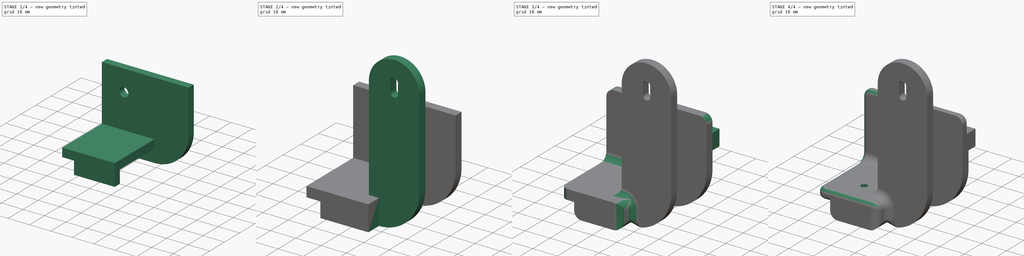
[diagram: build sequence overview — one tinted view per stage of 4, left to right]
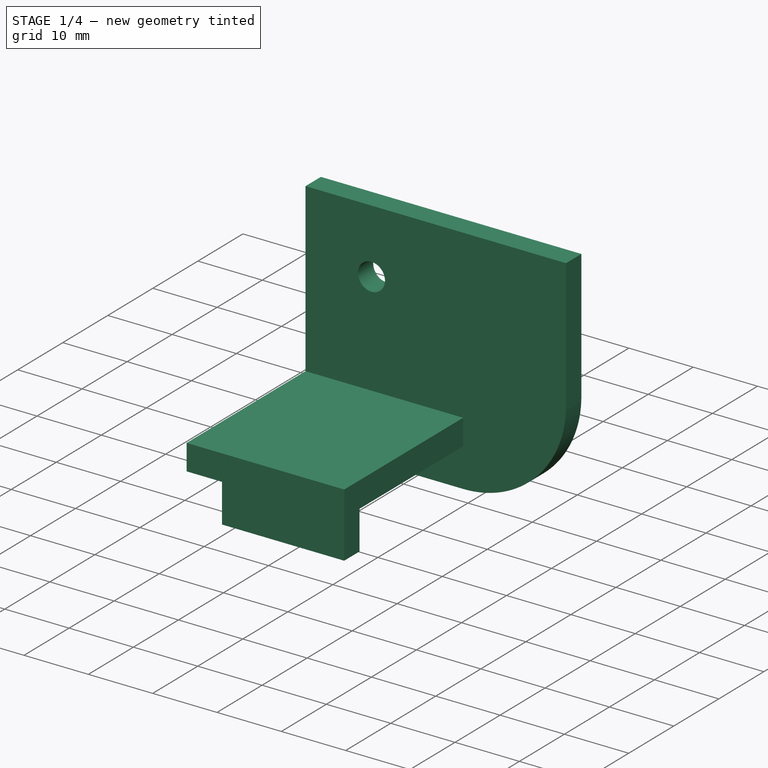
[diagram: stage 1 of 4 — iso view after this stage's code; geometry added in this stage tinted green]
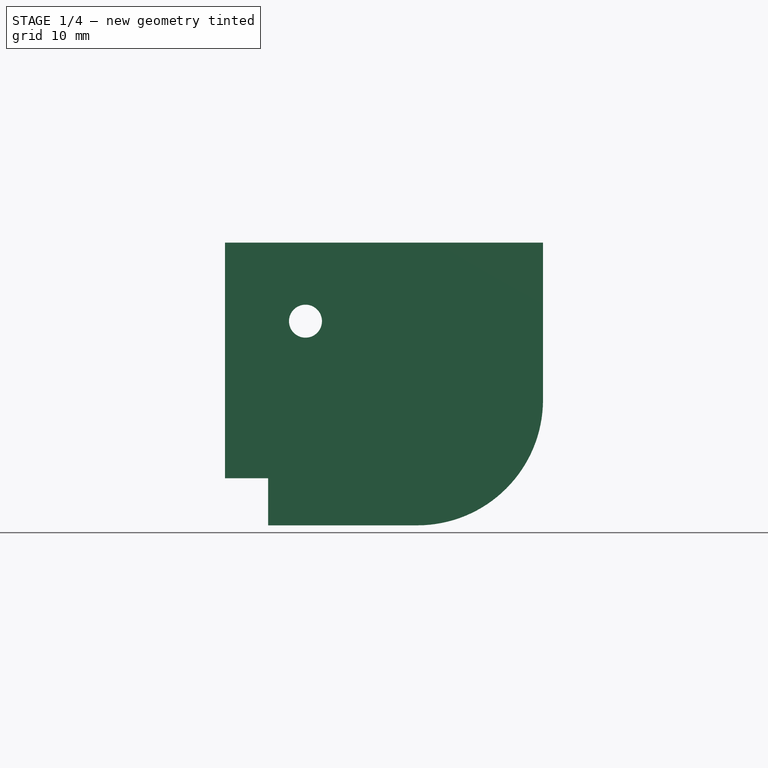
[diagram: stage 1 of 4 — front view after this stage's code; geometry added in this stage tinted green]
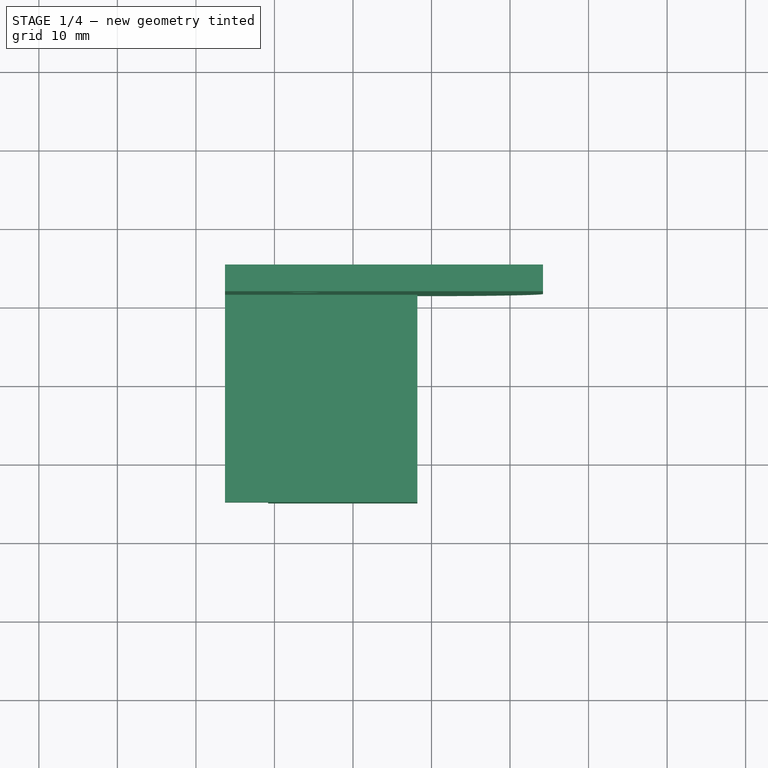
[diagram: stage 1 of 4 — top view after this stage's code; geometry added in this stage tinted green]
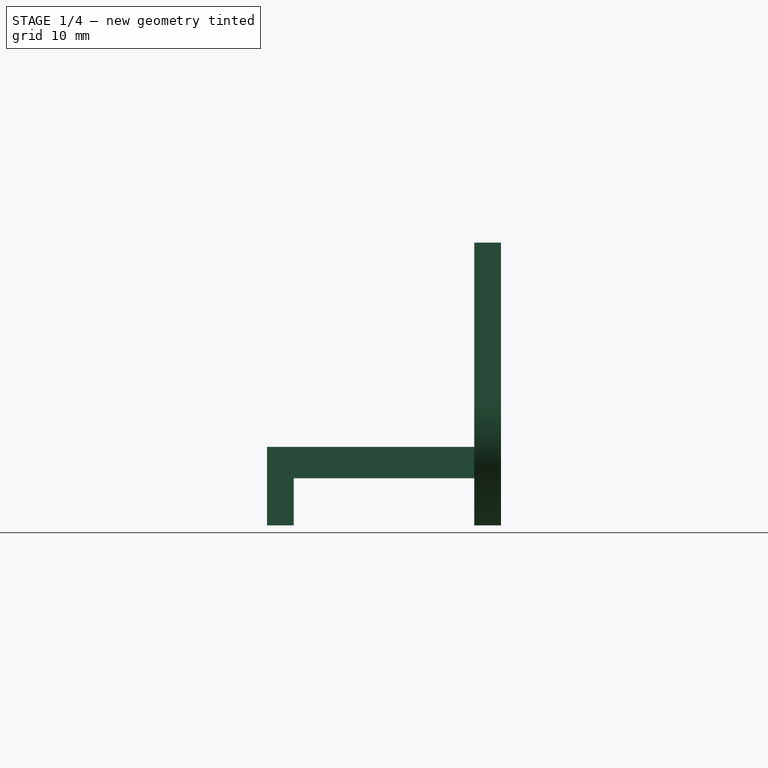
[diagram: stage 1 of 4 — right view after this stage's code; geometry added in this stage tinted green]
FCSTD DOCUMENT  (FreeCAD 1.0R39109 (Git))
Label: ChainDockTop
License: All rights reserved
LicenseURL: http://en.wikipedia.org/wiki/All_rights_reserved
objects: Sketcher::SketchObject×10, PartDesign::Pad×7, PartDesign::Fillet×3, App::VarSet×1, PartDesign::Pocket×1, PartDesign::Body×1
note: 54 computed .brp shape members not serialized (recipe doc carries the construction recipe); baked Part::Feature solids carry a one-line shape summary decoded from their .brp

FEATURE [Sketcher::SketchObject] Sketch  label="Template_XY"
  ArcFitTolerance = 1e-06
  AttachmentSupport = -> [XY_Plane]
  FullyConstrained = true
  MakeInternals = false
  MapMode = 5
  expr: .Constraints.Width = <<Dimensions>>.ConnectorWidth
  expr: Constraints[26] = <<Dimensions>>.ConnectorInnerMargin
  expr: Constraints[9] = <<Dimensions>>.ConnectorLength
  sketch-geometry (11):
    g0: Circle CenterX=0 CenterY=0 CenterZ=0 NormalX=0 NormalY=0 NormalZ=1 AngleXU=0 Radius=1.275
    g1: LineSegment StartX=4.2 StartY=11.5 StartZ=0 EndX=-16.3 EndY=11.5 EndZ=0
    g2: LineSegment StartX=-16.3 StartY=11.5 StartZ=0 EndX=-16.3 EndY=-11.5 EndZ=0
    g3: LineSegment StartX=-16.3 StartY=-11.5 StartZ=0 EndX=4.2 EndY=-11.5 EndZ=0
    g4: LineSegment StartX=4.2 StartY=-11.5 StartZ=0 EndX=4.2 EndY=11.5 EndZ=0
    g5: Circle CenterX=-4 CenterY=5 CenterZ=0 NormalX=0 NormalY=0 NormalZ=1 AngleXU=0 Radius=1.275
    g6: Circle CenterX=-4 CenterY=-5 CenterZ=0 NormalX=0 NormalY=0 NormalZ=1 AngleXU=0 Radius=1.275
    g7: LineSegment StartX=-4 StartY=5 StartZ=0 EndX=-4 EndY=-5 EndZ=0
    g8: LineSegment StartX=-16.3 StartY=0 StartZ=0 EndX=4.2 EndY=0 EndZ=0
    g9: LineSegment StartX=0 StartY=11.5 StartZ=0 EndX=0 EndY=-11.5 EndZ=0
    g10: LineSegment StartX=-10.8 StartY=11.5 StartZ=0 EndX=-10.8 EndY=-11.5 EndZ=0
  constraints (31):
    c: Radius(g0) = 1.275
    c: Coincident(g0,g-1)
    c: Coincident(g1,g2)
    c: Coincident(g2,g3)
    c: Coincident(g3,g4)
    c: Coincident(g4,g1)
    c: Horizontal(g1)
    c: Horizontal(g3)
    c: Vertical(g4)
    c: DistanceX(g1,g1) = 20.5
    c: Coincident(g7,g5)
    c: Coincident(g7,g6)
    c: DistanceY(g7,g7) = 10
    c: Equal(g0,g5)
    c: Equal(g5,g6)
    c: DistanceY(g4,g4) = 23  'Width'
    c: Symmetric(g4,g4,g8)
    c: PointOnObject(g0,g8)
    c: Symmetric(g2,g1,g8)
    c: Symmetric(g5,g6,g8)
    c: PointOnObject(g8,g2)
    c: PointOnObject(g9,g1)
    c: PointOnObject(g9,g3)
    c: Vertical(g9)
    c: PointOnObject(g0,g9)
    c: DistanceX(g5,g0) = 4
    c: DistanceX(g9,g1) = 4.2
    c: PointOnObject(g10,g1)
    c: PointOnObject(g10,g3)
    c: Vertical(g10)
    c: DistanceX(g1,g10) = 5.5
FEATURE [Sketcher::SketchObject] Sketch001  label="Template_XZ"
  ArcFitTolerance = 1e-06
  AttachmentSupport = -> [XZ_Plane]
  ExternalGeometry = -> [Sketch]
  FullyConstrained = true
  MakeInternals = false
  MapMode = 5
  Placement = pos=(0,0,0) rot=(1,0,0;1.5708rad)
  sketch-geometry (28):
    g0: LineSegment StartX=-16.3 StartY=0 StartZ=0 EndX=-16.3 EndY=4 EndZ=0
    g1: LineSegment StartX=-16.3 StartY=0 StartZ=0 EndX=-16.3 EndY=-6 EndZ=0
    g2: LineSegment [constr] StartX=4.2 StartY=4 StartZ=0 EndX=8.2 EndY=4 EndZ=0
    g3: LineSegment StartX=-16.3 StartY=4 StartZ=0 EndX=4.2 EndY=4 EndZ=0
    g4: LineSegment [constr] StartX=4.2 StartY=0 StartZ=0 EndX=4.2 EndY=4 EndZ=0
    g5: LineSegment StartX=-16.3 StartY=0 StartZ=0 EndX=8.2 EndY=0 EndZ=0
    g6: ArcOfCircle CenterX=8.2 CenterY=10 CenterZ=0 NormalX=0 NormalY=0 NormalZ=1 AngleXU=0 Radius=16 StartAngle=4.71239 EndAngle=6.28319
    g7: LineSegment [constr] StartX=8.2 StartY=10 StartZ=0 EndX=24.2 EndY=10 EndZ=0
    g8: LineSegment StartX=-16.3 StartY=4 StartZ=0 EndX=-16.3 EndY=30 EndZ=0
    g9: LineSegment StartX=-16.3 StartY=30 StartZ=0 EndX=4.2 EndY=30 EndZ=0
    g10: LineSegment StartX=24.2 StartY=10 StartZ=0 EndX=24.2 EndY=45 EndZ=0
    g11: LineSegment StartX=4.2 StartY=30 StartZ=0 EndX=4.2 EndY=45 EndZ=0
    g12: LineSegment [constr] StartX=4.2 StartY=45 StartZ=0 EndX=24.2 EndY=45 EndZ=0
    g13: LineSegment StartX=8.2 StartY=0 StartZ=0 EndX=8.2 EndY=30 EndZ=0
    g14: LineSegment StartX=8.2 StartY=30 StartZ=0 EndX=4.2 EndY=30 EndZ=0
    g15: ArcOfCircle CenterX=14.2 CenterY=45 CenterZ=0 NormalX=0 NormalY=0 NormalZ=1 AngleXU=0 Radius=10 StartAngle=-9e-16 EndAngle=3.14159
    g16: ArcOfCircle CenterX=14.2 CenterY=47 CenterZ=0 NormalX=0 NormalY=0 NormalZ=1 AngleXU=0 Radius=1.5 StartAngle=-1.8e-15 EndAngle=3.14159
    g17: ArcOfCircle CenterX=14.2 CenterY=43 CenterZ=0 NormalX=0 NormalY=0 NormalZ=1 AngleXU=0 Radius=1.5 StartAngle=3.14159 EndAngle=6.28319
    g18: LineSegment StartX=15.7 StartY=47 StartZ=0 EndX=15.7 EndY=43 EndZ=0
    g19: LineSegment StartX=12.7 StartY=47 StartZ=0 EndX=12.7 EndY=43 EndZ=0
    g20: LineSegment [constr] StartX=14.2 StartY=47 StartZ=0 EndX=14.2 EndY=43 EndZ=0
    g21: LineSegment StartX=-16.3 StartY=20 StartZ=0 EndX=4.2 EndY=20 EndZ=0
    g22: Circle CenterX=-6.05 CenterY=20 CenterZ=0 NormalX=0 NormalY=0 NormalZ=1 AngleXU=0 Radius=2.1
    g23: LineSegment StartX=4.2 StartY=30 StartZ=0 EndX=4.2 EndY=4 EndZ=0
    g24: LineSegment StartX=-16.3 StartY=-6 StartZ=0 EndX=-10.8 EndY=-6 EndZ=0
    g25: LineSegment StartX=-10.8 StartY=-6 StartZ=0 EndX=8.2 EndY=-6 EndZ=0
    g26: LineSegment StartX=-10.8 StartY=-6 StartZ=0 EndX=-10.8 EndY=0 EndZ=0
    g27: LineSegment StartX=4.2 StartY=20 StartZ=0 EndX=24.2 EndY=20 EndZ=0
  constraints (75):
    c: Coincident(g0,g-4)
    c: Vertical(g0)
    c: Coincident(g1,g0)
    c: Vertical(g1)
    c: DistanceY(g0,g0) = 4
    c: Horizontal(g2)
    c: Coincident(g3,g0)
    c: Horizontal(g3)
    c: Coincident(g24,g1)
    c: Vertical(g4)
    c: Coincident(g5,g0)
    c: Coincident(g6,g25)
    c: Coincident(g7,g6)
    c: Horizontal(g7)
    c: Coincident(g8,g0)
    c: Vertical(g8)
    c: DistanceY(g8,g8) = 26
    c: Coincident(g9,g8)
    c: Horizontal(g9)
    c: Coincident(g10,g6)
    c: Vertical(g10)
    c: Coincident(g11,g9)
    c: Vertical(g11)
    c: Coincident(g12,g11)
    c: Coincident(g12,g10)
    c: Horizontal(g12)
    c: DistanceY(g8,g11) = 15
    c: DistanceX(g12,g12) = 20
    c: Vertical(g13)
    c: Coincident(g14,g13)
    c: Coincident(g14,g9)
    c: Coincident(g11,g15)
    c: Coincident(g10,g15)
    c: PointOnObject(g15,g12)
    c: Horizontal(g14)
    c: Tangent(g16,g18) = 1.5708
    c: Tangent(g16,g19) = -1.5708
    c: Tangent(g17,g18) = 1.5708
    c: Tangent(g17,g19) = -1.5708
    c: Equal(g16,g17)
    c: Vertical(g19)
    c: Coincident(g20,g16)
    c: Coincident(g20,g17)
    c: Symmetric(g16,g17,g15)
    c: Radius(g16) = 1.5
    c: DistanceY(g19,g19) = 4
    c: Horizontal(g21)
    c: DistanceY(g21,g8) = 10
    c: Symmetric(g21,g21,g22)
    c: Radius(g22) = 2.1
    c: DistanceY(g1,g1) = 6
    c: Coincident(g23,g9)
    c: Vertical(g23)
    c: PointOnObject(g21,g23)
    c: Coincident(g24,g25)
    c: Horizontal(g24)
    c: Horizontal(g25)
    c: Coincident(g26,g24)
    c: Vertical(g26)
    c: Coincident(g27,g21)
    c: PointOnObject(g27,g10)
    c: Horizontal(g27)
    c: PointOnObject(g21,g8)
    c: PointOnObject(g2,g13)
    c: Equal(g0,g14)
    c: Coincident(g13,g5)
    c: PointOnObject(g4,g5)
    c: Coincident(g2,g3)
    c: Coincident(g2,g4)
    c: Coincident(g2,g23)
    c: Coincident(g7,g6)
    c: PointOnObject(g6,g13)
    c: PointOnObject(g6,g13)
    c: Coincident(g4,g-3)
    c: Coincident(g26,g-5)
FEATURE [Sketcher::SketchObject] Sketch002
  ArcFitTolerance = 1e-06
  AttachmentOffset = pos=(0,0,-11.5) rot=(0,0,1;0rad)
  AttachmentSupport = -> [XZ_Plane]
  ExternalGeometry = -> [Sketch001]
  FullyConstrained = true
  MakeInternals = false
  MapMode = 5
  Placement = pos=(0,11.5,-2.6e-15) rot=(1,0,0;1.5708rad)
  expr: .AttachmentOffset.Base.z = -<<Template_XY>>.Constraints.Width / 2
  sketch-geometry (8):
    g0: LineSegment StartX=24.2 StartY=10 StartZ=0 EndX=24.2 EndY=30 EndZ=0
    g1: LineSegment StartX=24.2 StartY=30 StartZ=0 EndX=-16.3 EndY=30 EndZ=0
    g2: LineSegment StartX=-10.8 StartY=-6 StartZ=0 EndX=8.2 EndY=-6 EndZ=0
    g3: ArcOfCircle CenterX=8.2 CenterY=10 CenterZ=0 NormalX=0 NormalY=0 NormalZ=1 AngleXU=0 Radius=16 StartAngle=4.71239 EndAngle=6.28319
    g4: Circle CenterX=-6.05 CenterY=20 CenterZ=0 NormalX=0 NormalY=0 NormalZ=1 AngleXU=0 Radius=2.1
    g5: LineSegment StartX=-16.3 StartY=30 StartZ=0 EndX=-16.3 EndY=0 EndZ=0
    g6: LineSegment StartX=-16.3 StartY=0 StartZ=0 EndX=-10.8 EndY=0 EndZ=0
    g7: LineSegment StartX=-10.8 StartY=0 StartZ=0 EndX=-10.8 EndY=-6 EndZ=0
  constraints (18):
    c: Coincident(g-5,g0)
    c: Vertical(g0)
    c: Coincident(g1,g0)
    c: PointOnObject(g-3,g1)
    c: Coincident(g2,g-4)
    c: Coincident(g3,g0)
    c: Coincident(g3,g2)
    c: Equal(g3,g-4)
    c: Coincident(g4,g-7)
    c: Equal(g4,g-7)
    c: Coincident(g1,g-3)
    c: Coincident(g5,g1)
    c: Coincident(g5,g-8)
    c: Coincident(g6,g5)
    c: Coincident(g6,g-6)
    c: Coincident(g7,g6)
    c: Coincident(g7,g2)
    c: Coincident(g2,g-6)
FEATURE [PartDesign::Pad] Pad
  Direction = (0,-1,2e-16)
  Length = 3.4
  Length2 = 10
  Placement = pos=(0,0,0) rot=(1,0,0;1.5708rad)
  Profile = -> Sketch002
  ReferenceAxis = -> Sketch002 [N_Axis]
  Reversed = true
  Suppressed = false
  Type = 0
FEATURE [Sketcher::SketchObject] Sketch003
  ArcFitTolerance = 1e-06
  AttachmentOffset = pos=(0,0,-11.5) rot=(0,0,1;0rad)
  AttachmentSupport = -> [XZ_Plane]
  ExternalGeometry = -> [Sketch001]
  FullyConstrained = true
  MakeInternals = false
  MapMode = 5
  Placement = pos=(0,11.5,-2.6e-15) rot=(1,0,0;1.5708rad)
  expr: .AttachmentOffset.Base.z = <<Sketch002>>.AttachmentOffset.Base.z
  sketch-geometry (4):
    g0: LineSegment StartX=8.2 StartY=4 StartZ=0 EndX=-16.3 EndY=4 EndZ=0
    g1: LineSegment StartX=-16.3 StartY=4 StartZ=0 EndX=-16.3 EndY=0 EndZ=0
    g2: LineSegment StartX=-16.3 StartY=0 StartZ=0 EndX=8.2 EndY=0 EndZ=0
    g3: LineSegment StartX=8.2 StartY=0 StartZ=0 EndX=8.2 EndY=4 EndZ=0
  constraints (9):
    c: Coincident(g0,g-3)
    c: Coincident(g0,g1)
    c: Coincident(g1,g-3)
    c: Coincident(g1,g2)
    c: Coincident(g2,g-5)
    c: PointOnObject(g0,g-5)
    c: PointOnObject(g-4,g0)
    c: Coincident(g3,g2)
    c: Coincident(g0,g3)
FEATURE [PartDesign::Pad] Pad001
  BaseFeature = -> Pad
  Direction = (0,-1,2e-16)
  Length = 23
  Length2 = 10
  Placement = pos=(0,0,0) rot=(1,0,0;1.5708rad)
  Profile = -> Sketch003
  ReferenceAxis = -> Sketch003 [N_Axis]
  Suppressed = false
  Type = 0
  expr: Length = <<Template_XY>>.Constraints.Width
FEATURE [Sketcher::SketchObject] Sketch004
  ArcFitTolerance = 1e-06
  AttachmentOffset = pos=(0,0,11.5) rot=(0,0,1;0rad)
  AttachmentSupport = -> [XZ_Plane]
  ExternalGeometry = -> [Sketch001]
  FullyConstrained = true
  MakeInternals = false
  MapMode = 5
  Placement = pos=(0,-11.5,2.6e-15) rot=(1,0,0;1.5708rad)
  expr: .AttachmentOffset.Base.z = <<Template_XY>>.Constraints.Width / 2
  sketch-geometry (6):
    g0: LineSegment StartX=8.2 StartY=-6 StartZ=0 EndX=-10.8 EndY=-6 EndZ=0
    g1: LineSegment StartX=-10.8 StartY=-6 StartZ=0 EndX=-10.8 EndY=0 EndZ=0
    g2: LineSegment StartX=-10.8 StartY=0 StartZ=0 EndX=-16.3 EndY=0 EndZ=0
    g3: LineSegment StartX=-16.3 StartY=0 StartZ=0 EndX=-16.3 EndY=4 EndZ=0
    g4: LineSegment StartX=-16.3 StartY=4 StartZ=0 EndX=8.2 EndY=4 EndZ=0
    g5: LineSegment StartX=8.2 StartY=-6 StartZ=0 EndX=8.2 EndY=4 EndZ=0
  constraints (14):
    c: Coincident(g0,g-5)
    c: Coincident(g0,g1)
    c: Coincident(g1,g-5)
    c: Coincident(g1,g2)
    c: Coincident(g2,g-4)
    c: Coincident(g2,g3)
    c: Coincident(g3,g-3)
    c: Coincident(g3,g4)
    c: PointOnObject(g0,g-6)
    c: PointOnObject(g-7,g0)
    c: PointOnObject(g4,g-6)
    c: PointOnObject(g-3,g4)
    c: Coincident(g5,g0)
    c: Coincident(g5,g4)
FEATURE [PartDesign::Pad] Pad002
  BaseFeature = -> Pad001
  Direction = (0,-1,2e-16)
  Length = 3.4
  Length2 = 10
  Placement = pos=(0,0,0) rot=(1,0,0;1.5708rad)
  Profile = -> Sketch004
  ReferenceAxis = -> Sketch004 [N_Axis]
  Refine = true
  Suppressed = false
  Type = 0
  expr: Length = <<Pad>>.Length
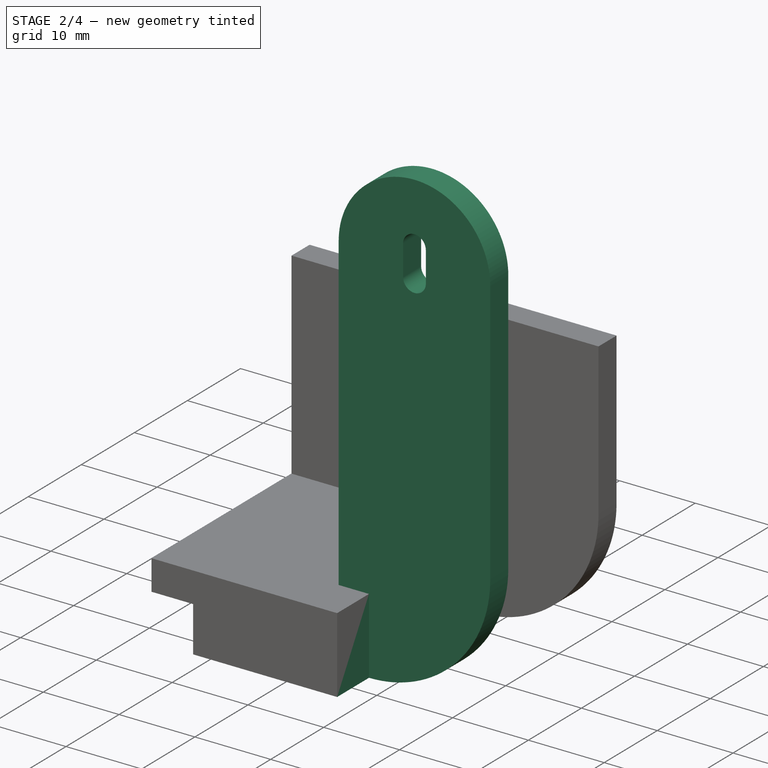
[diagram: stage 2 of 4 — iso view after this stage's code; geometry added in this stage tinted green]
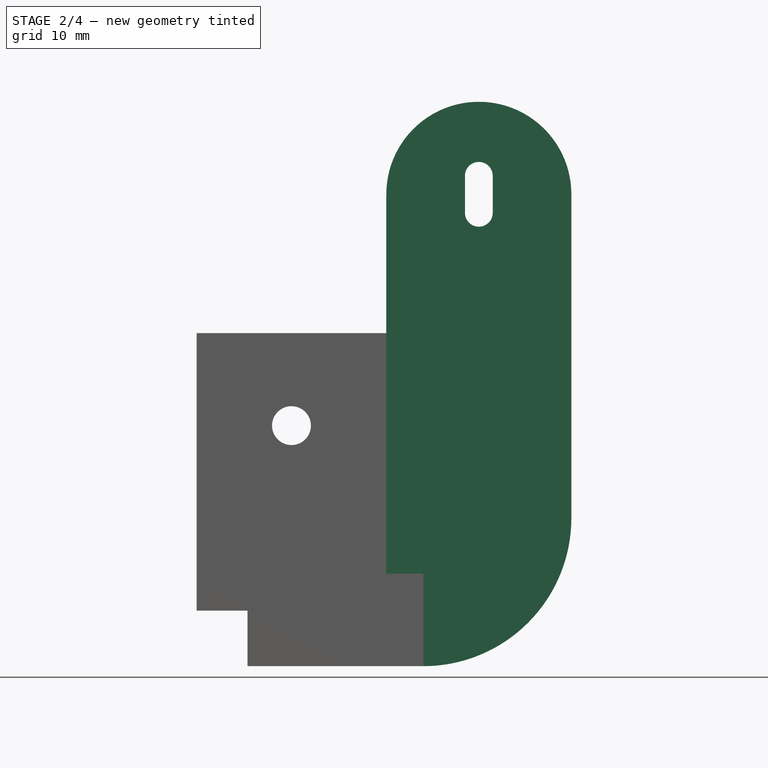
[diagram: stage 2 of 4 — front view after this stage's code; geometry added in this stage tinted green]
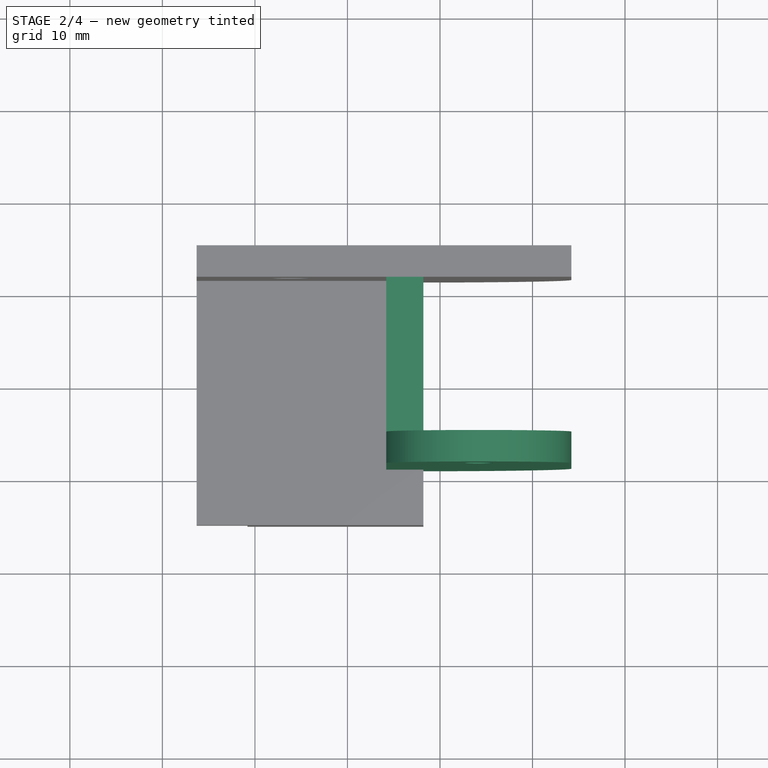
[diagram: stage 2 of 4 — top view after this stage's code; geometry added in this stage tinted green]
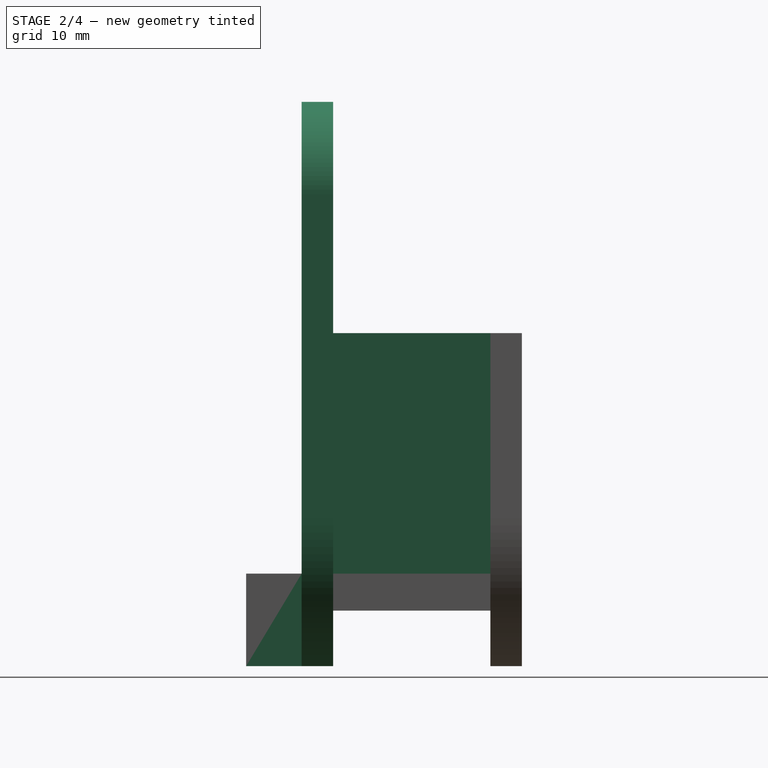
[diagram: stage 2 of 4 — right view after this stage's code; geometry added in this stage tinted green]
FEATURE [Sketcher::SketchObject] Sketch005
  ArcFitTolerance = 1e-06
  AttachmentOffset = pos=(0,0,-14.9) rot=(0,0,1;0rad)
  AttachmentSupport = -> [XZ_Plane]
  ExternalGeometry = -> [Sketch001]
  FullyConstrained = true
  MakeInternals = false
  MapMode = 5
  Placement = pos=(0,14.9,-3.3e-15) rot=(1,0,0;1.5708rad)
  expr: .AttachmentOffset.Base.z = <<Sketch002>>.AttachmentOffset.Base.z - <<Pad>>.Length
  sketch-geometry (4):
    g0: LineSegment StartX=24.2 StartY=23.2 StartZ=0 EndX=1.95 EndY=23.2 EndZ=0
    g1: LineSegment StartX=1.95 StartY=23.2 StartZ=0 EndX=1.95 EndY=16.8 EndZ=0
    g2: LineSegment StartX=1.95 StartY=16.8 StartZ=0 EndX=24.2 EndY=16.8 EndZ=0
    g3: LineSegment StartX=24.2 StartY=16.8 StartZ=0 EndX=24.2 EndY=23.2 EndZ=0
  constraints (11):
    c: Coincident(g0,g1)
    c: Coincident(g1,g2)
    c: Coincident(g2,g3)
    c: Coincident(g3,g0)
    c: Horizontal(g0)
    c: Horizontal(g2)
    c: Vertical(g1)
    c: PointOnObject(g0,g-6)
    c: Symmetric(g2,g0,g-4)
    c: DistanceX(g-7,g0) = 8
    c: DistanceY(g3,g3) = 6.4
FEATURE [Sketcher::SketchObject] Sketch006
  ArcFitTolerance = 1e-06
  AttachmentSupport = -> [XY_Plane]
  ExternalGeometry = -> [Sketch]
  FullyConstrained = true
  MakeInternals = false
  MapMode = 5
  sketch-geometry (3):
    g0: Circle CenterX=-4 CenterY=5 CenterZ=0 NormalX=0 NormalY=0 NormalZ=1 AngleXU=0 Radius=1.275
    g1: Circle CenterX=0 CenterY=0 CenterZ=0 NormalX=0 NormalY=0 NormalZ=1 AngleXU=0 Radius=1.275
    g2: Circle CenterX=-4 CenterY=-5 CenterZ=0 NormalX=0 NormalY=0 NormalZ=1 AngleXU=0 Radius=1.275
  constraints (6):
    c: Coincident(g0,g-3)
    c: Coincident(g1,g-1)
    c: Coincident(g2,g-4)
    c: Equal(g-4,g2)
    c: Equal(g-3,g0)
    c: Equal(g-5,g1)
FEATURE [Sketcher::SketchObject] Sketch009
  ArcFitTolerance = 1e-06
  AttachmentOffset = pos=(0,0,5.5) rot=(0,0,1;0rad)
  AttachmentSupport = -> [XZ_Plane]
  ExternalGeometry = -> [Sketch001]
  FullyConstrained = true
  MakeInternals = false
  MapMode = 5
  Placement = pos=(0,-5.5,1.2e-15) rot=(1,0,0;1.5708rad)
  expr: .AttachmentOffset.Base.z = <<Sketch004>>.AttachmentOffset.Base.z - 6 mm
  sketch-geometry (9):
    g0: LineSegment StartX=4.2 StartY=-6 StartZ=0 EndX=4.2 EndY=45 EndZ=0
    g1: LineSegment StartX=4.2 StartY=-6 StartZ=0 EndX=8.2 EndY=-6 EndZ=0
    g2: LineSegment StartX=24.2 StartY=10 StartZ=0 EndX=24.2 EndY=45 EndZ=0
    g3: ArcOfCircle CenterX=8.2 CenterY=10 CenterZ=0 NormalX=0 NormalY=0 NormalZ=1 AngleXU=0 Radius=16 StartAngle=4.71239 EndAngle=6.28319
    g4: ArcOfCircle CenterX=14.2 CenterY=45 CenterZ=0 NormalX=0 NormalY=0 NormalZ=1 AngleXU=0 Radius=10 StartAngle=1.35397e-08 EndAngle=3.14159
    g5: ArcOfCircle CenterX=14.2 CenterY=47 CenterZ=0 NormalX=0 NormalY=0 NormalZ=1 AngleXU=0 Radius=1.5 StartAngle=2.38348e-07 EndAngle=3.14159
    g6: ArcOfCircle CenterX=14.2 CenterY=43 CenterZ=0 NormalX=0 NormalY=0 NormalZ=1 AngleXU=0 Radius=1.5 StartAngle=3.14159 EndAngle=6.28318
    g7: LineSegment StartX=12.7 StartY=47 StartZ=0 EndX=12.7 EndY=43 EndZ=0
    g8: LineSegment StartX=15.7 StartY=47 StartZ=0 EndX=15.7 EndY=43 EndZ=0
  constraints (23):
    c: PointOnObject(g0,g-7)
    c: Coincident(g0,g-3)
    c: PointOnObject(g-4,g0)
    c: Coincident(g1,g0)
    c: Coincident(g1,g-7)
    c: Coincident(g2,g-6)
    c: Coincident(g2,g-5)
    c: Coincident(g3,g2)
    c: Coincident(g3,g1)
    c: Equal(g-6,g3)
    c: Coincident(g4,g0)
    c: Coincident(g4,g2)
    c: Equal(g4,g-3)
    c: Coincident(g5,g-8)
    c: Coincident(g5,g-8)
    c: Coincident(g6,g-9)
    c: Coincident(g6,g-9)
    c: Equal(g-8,g5)
    c: Equal(g-9,g6)
    c: Coincident(g7,g5)
    c: Coincident(g7,g6)
    c: Coincident(g8,g5)
    c: Coincident(g8,g6)
FEATURE [PartDesign::Pad] Pad006
  BaseFeature = -> Pad002
  Direction = (0,-1,2e-16)
  Length = 3.4
  Length2 = 10
  Placement = pos=(0,0,0) rot=(1,0,0;1.5708rad)
  Profile = -> Sketch009
  ReferenceAxis = -> Sketch009 [N_Axis]
  Suppressed = false
  Type = 0
  expr: Length = <<Pad>>.Length
FEATURE [Sketcher::SketchObject] Sketch010
  ArcFitTolerance = 1e-06
  AttachmentOffset = pos=(0,0,8.9) rot=(0,0,1;0rad)
  AttachmentSupport = -> [XZ_Plane]
  ExternalGeometry = -> [Sketch001]
  FullyConstrained = true
  MakeInternals = false
  MapMode = 5
  Placement = pos=(0,-8.9,2e-15) rot=(1,0,0;1.5708rad)
  expr: .AttachmentOffset.Base.z = <<Sketch009>>.AttachmentOffset.Base.z + <<Pad006>>.Length
  sketch-geometry (4):
    g0: LineSegment StartX=4.2 StartY=0 StartZ=0 EndX=4.2 EndY=-6 EndZ=0
    g1: LineSegment StartX=4.2 StartY=-6 StartZ=0 EndX=8.2 EndY=-6 EndZ=0
    g2: LineSegment StartX=8.2 StartY=-6 StartZ=0 EndX=8.2 EndY=0 EndZ=0
    g3: LineSegment StartX=8.2 StartY=0 StartZ=0 EndX=4.2 EndY=0 EndZ=0
  constraints (10):
    c: Coincident(g0,g1)
    c: Coincident(g1,g2)
    c: Coincident(g2,g3)
    c: Coincident(g3,g0)
    c: PointOnObject(g0,g-5)
    c: Coincident(g1,g-3)
    c: PointOnObject(g0,g-4)
    c: Coincident(g2,g-5)
    c: Equal(g3,g1)
    c: Equal(g0,g2)
FEATURE [PartDesign::Pad] Pad007
  BaseFeature = -> Pad006
  Direction = (0,-1,2e-16)
  Length = 10
  Length2 = 10
  Placement = pos=(0,0,0) rot=(1,0,0;1.5708rad)
  Profile = -> Sketch010
  ReferenceAxis = -> Sketch010 [N_Axis]
  Refine = true
  Suppressed = false
  Type = 5
FEATURE [Sketcher::SketchObject] Sketch011
  ArcFitTolerance = 1e-06
  AttachmentOffset = pos=(0,0,-11.5) rot=(0,0,1;0rad)
  AttachmentSupport = -> [XZ_Plane]
  ExternalGeometry = -> [Sketch001]
  FullyConstrained = true
  MakeInternals = false
  MapMode = 5
  Placement = pos=(0,11.5,-2.6e-15) rot=(1,0,0;1.5708rad)
  expr: .AttachmentOffset.Base.z = <<Sketch003>>.AttachmentOffset.Base.z
  sketch-geometry (4):
    g0: LineSegment StartX=4.2 StartY=30 StartZ=0 EndX=4.2 EndY=4 EndZ=0
    g1: LineSegment StartX=4.2 StartY=4 StartZ=0 EndX=8.2 EndY=4 EndZ=0
    g2: LineSegment StartX=8.2 StartY=4 StartZ=0 EndX=8.2 EndY=30 EndZ=0
    g3: LineSegment StartX=8.2 StartY=30 StartZ=0 EndX=4.2 EndY=30 EndZ=0
  constraints (9):
    c: Coincident(g0,g1)
    c: Coincident(g1,g2)
    c: Coincident(g2,g3)
    c: Coincident(g3,g0)
    c: Coincident(g0,g-4)
    c: PointOnObject(g1,g-5)
    c: Coincident(g0,g-4)
    c: Coincident(g2,g-5)
    c: Equal(g2,g0)
FEATURE [PartDesign::Pad] Pad008
  BaseFeature = -> Pad007
  Direction = (0,-1,2e-16)
  Length = 10
  Length2 = 10
  Placement = pos=(0,0,0) rot=(1,0,0;1.5708rad)
  Profile = -> Sketch011
  ReferenceAxis = -> Sketch011 [N_Axis]
  Suppressed = false
  Type = 2
  UpToShape = -> [Sketch009]
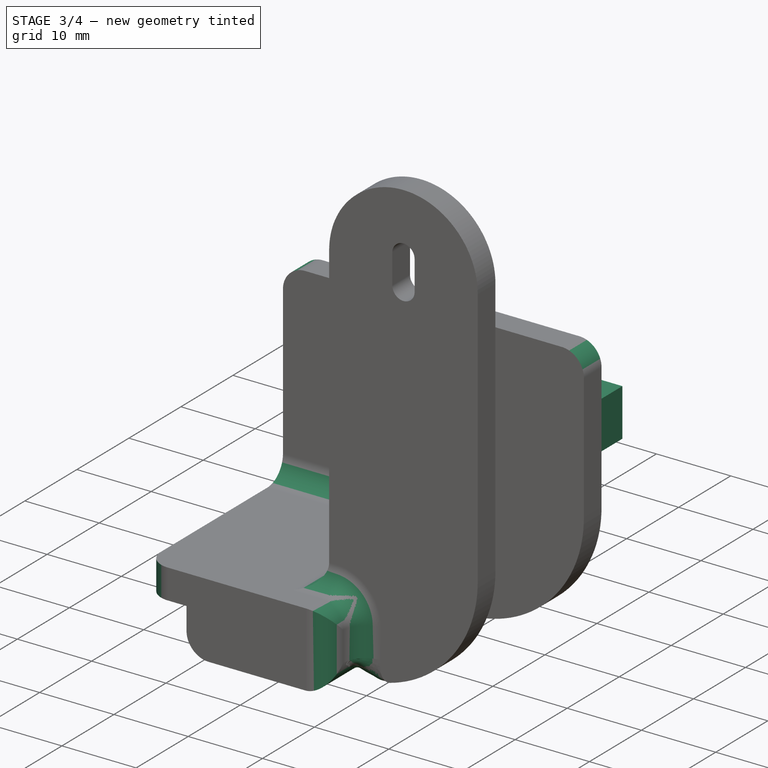
[diagram: stage 3 of 4 — iso view after this stage's code; geometry added in this stage tinted green]
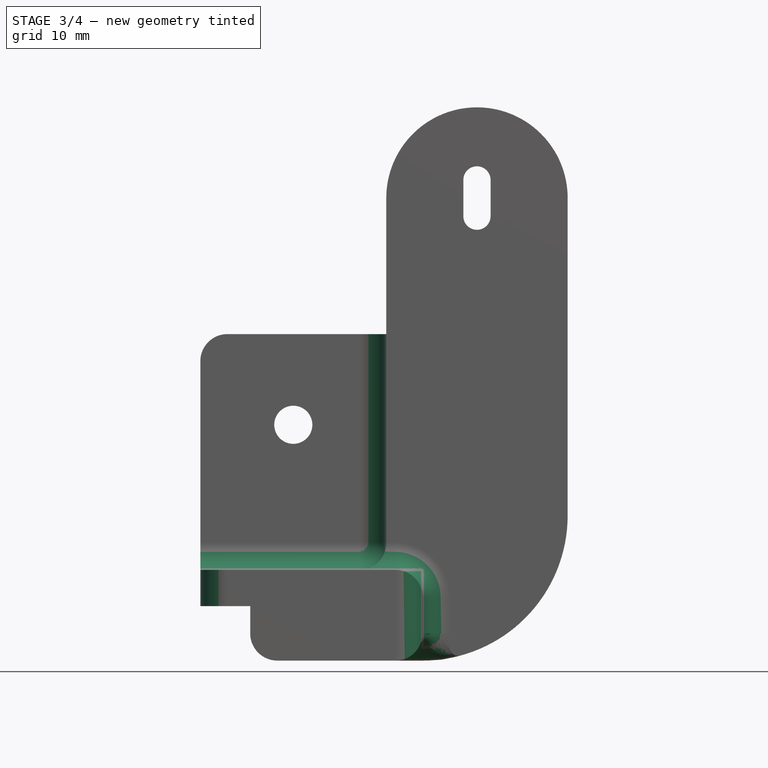
[diagram: stage 3 of 4 — front view after this stage's code; geometry added in this stage tinted green]
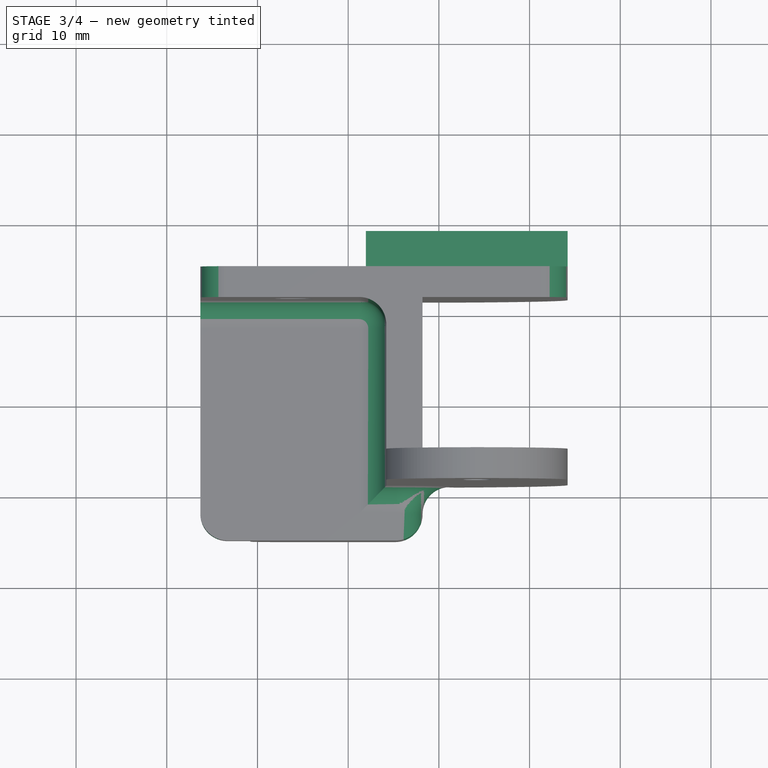
[diagram: stage 3 of 4 — top view after this stage's code; geometry added in this stage tinted green]
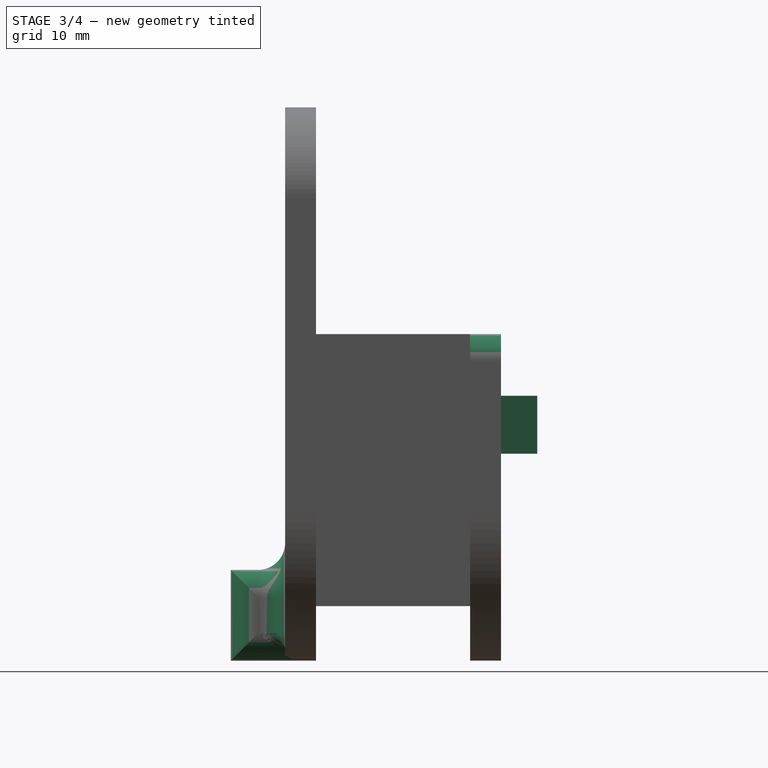
[diagram: stage 3 of 4 — right view after this stage's code; geometry added in this stage tinted green]
FEATURE [PartDesign::Pad] Pad003
  BaseFeature = -> Pad008
  Direction = (0,-1,2e-16)
  Length = 4
  Length2 = 10
  Placement = pos=(0,0,0) rot=(1,0,0;1.5708rad)
  Profile = -> Sketch005
  ReferenceAxis = -> Sketch005 [N_Axis]
  Refine = true
  Reversed = true
  Suppressed = false
  Type = 0
FEATURE [PartDesign::Fillet] Fillet
  Base = -> Pad003 [Edge22,Edge67,Edge30,Edge52,Edge29,Edge23,Edge90,Edge25,Edge51,Edge54,Edge53,Edge73,Edge74]
  BaseFeature = -> Pad003
  Placement = pos=(0,0,0) rot=(1,0,0;1.5708rad)
  Radius = 2.99
  SupportTransform = false
  Suppressed = false
  UseAllEdges = false
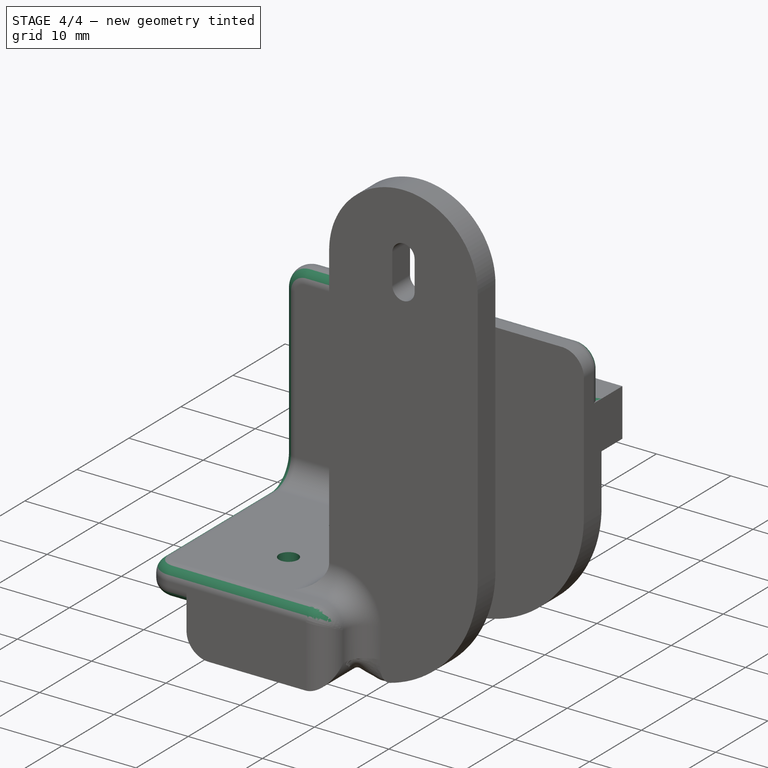
[diagram: stage 4 of 4 — iso view after this stage's code; geometry added in this stage tinted green]
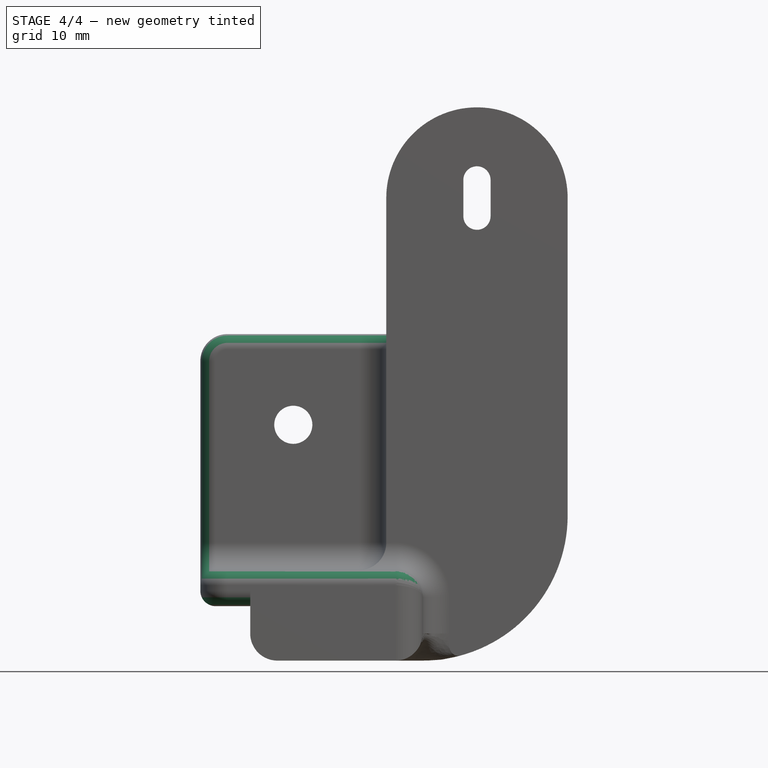
[diagram: stage 4 of 4 — front view after this stage's code; geometry added in this stage tinted green]
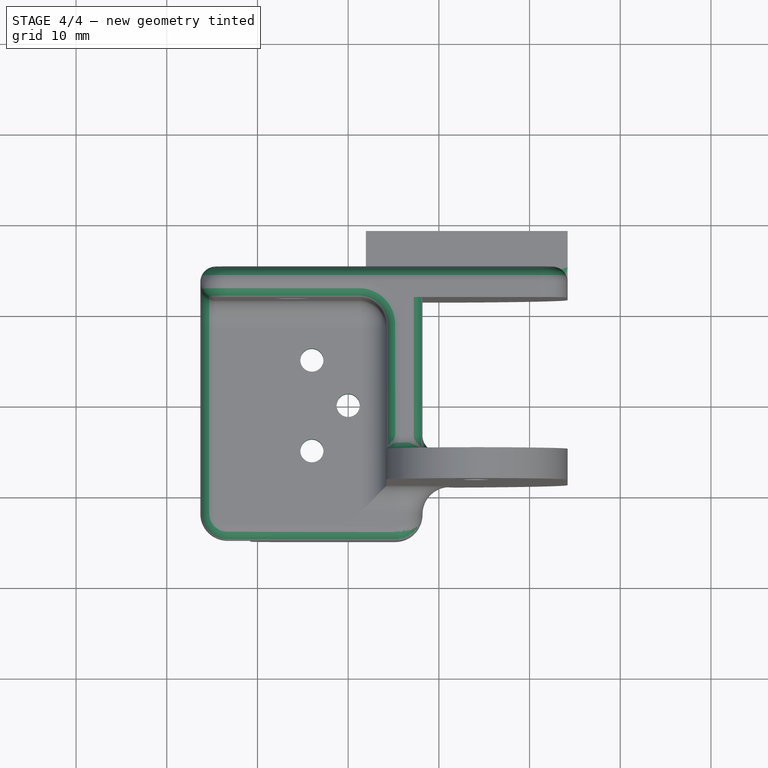
[diagram: stage 4 of 4 — top view after this stage's code; geometry added in this stage tinted green]
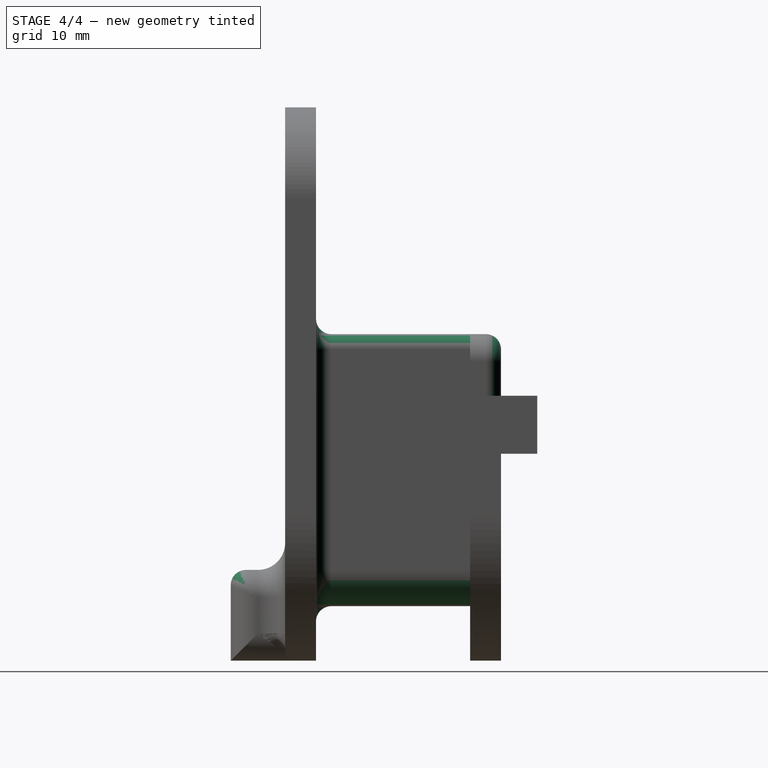
[diagram: stage 4 of 4 — right view after this stage's code; geometry added in this stage tinted green]
FEATURE [PartDesign::Fillet] Fillet001
  Base = -> Fillet [Edge31]
  BaseFeature = -> Fillet
  Placement = pos=(0,0,0) rot=(1,0,0;1.5708rad)
  Radius = 3.99
  SupportTransform = false
  Suppressed = false
  UseAllEdges = false
FEATURE [PartDesign::Fillet] Fillet002
  Base = -> Fillet001 [Edge13,Edge21,Edge12,Edge22,Edge20,Edge16,Edge27,Edge25]
  BaseFeature = -> Fillet001
  Placement = pos=(0,0,0) rot=(1,0,0;1.5708rad)
  Radius = 1.69
  SupportTransform = false
  Suppressed = false
  UseAllEdges = false
FEATURE [App::VarSet] VarSet  label="Dimensions"
  ConnectorInnerMargin = 4.2
  ConnectorLength = 20.5
  ConnectorWidth = 23
FEATURE [PartDesign::Pocket] Pocket
  BaseFeature = -> Fillet002
  Direction = (0,0,-1)
  Length = 5
  Length2 = 5
  Placement = pos=(0,0,0) rot=(1,0,0;1.5708rad)
  Profile = -> Sketch006
  ReferenceAxis = -> Sketch006 [N_Axis]
  Reversed = true
  Suppressed = false
  Type = 1
FEATURE [PartDesign::Body] Body
  AllowCompound = false
  Group = -> [VarSet,Sketch,Sketch001,Sketch002,Pad,Sketch003,Pad001,Sketch004,Pad002,Sketch009,Pad006,Sketch010,Pad007,Sketch011,Pad008,Sketch005,Pad003,Fillet,Fillet001,Fillet002,Sketch006,Pocket]
  Origin = -> Origin
  Tip = -> Pocket
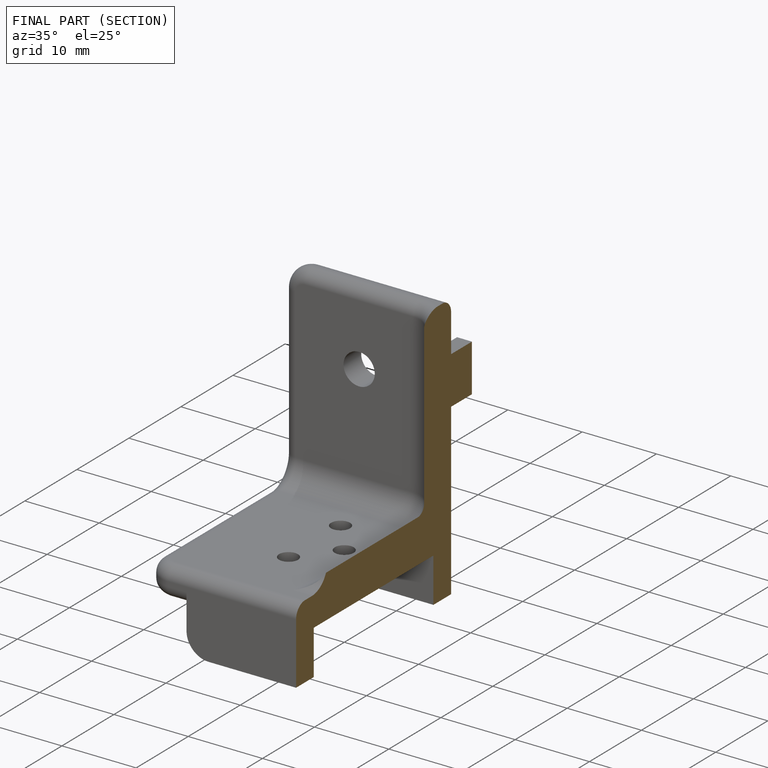
[diagram: finished part — half-section view (interior)]
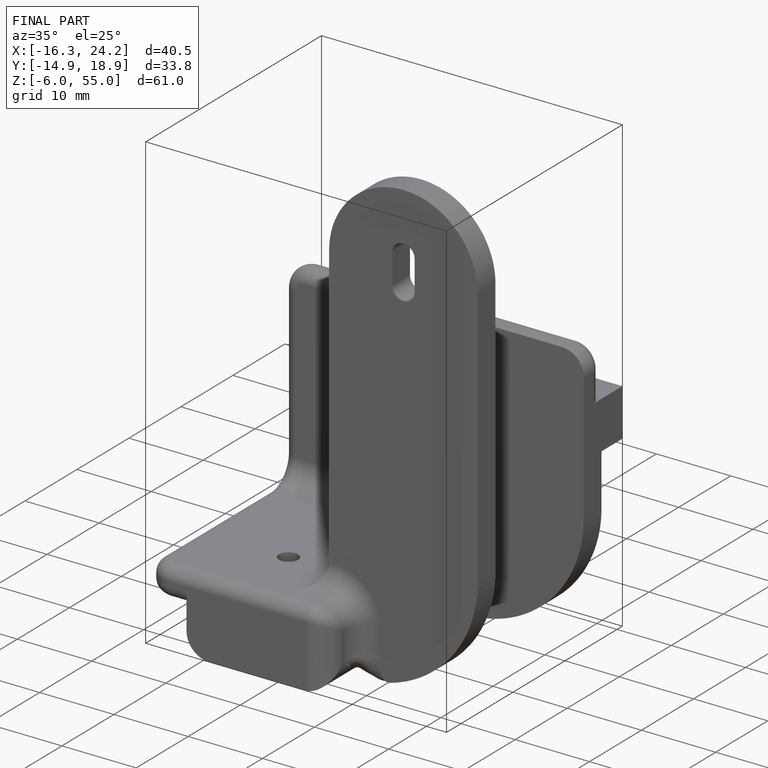
[diagram: finished part — iso view with bounding-box wireframe]
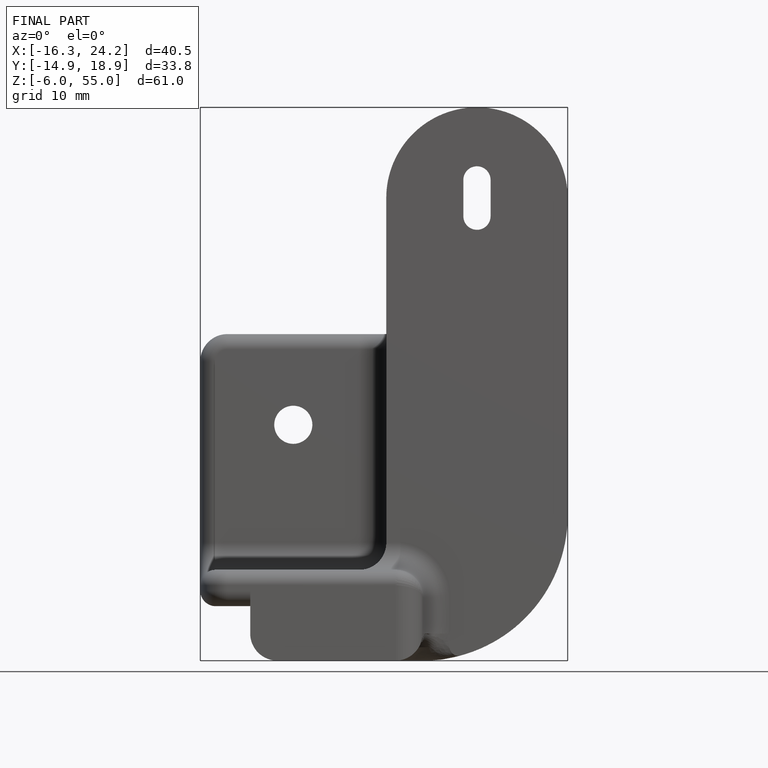
[diagram: finished part — front view with bounding-box wireframe]
